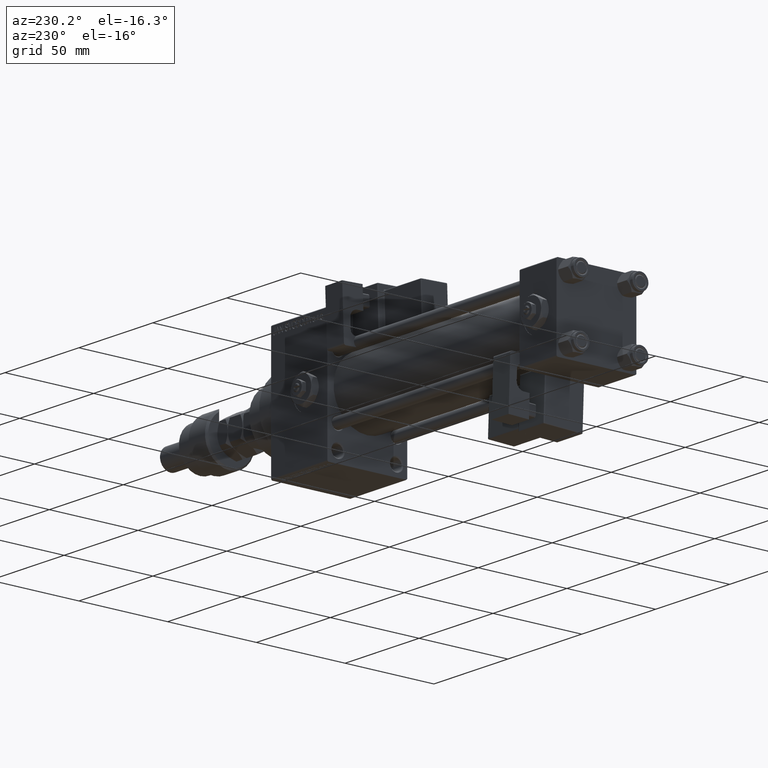
[diagram: clean part render]
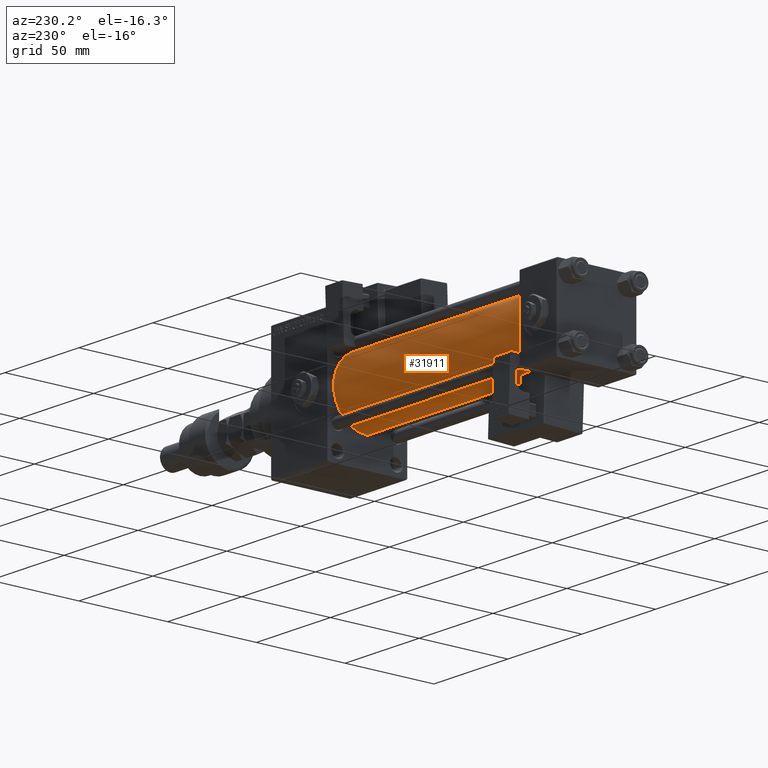
[diagram: same view with one face highlighted and labeled with its STEP entity id]
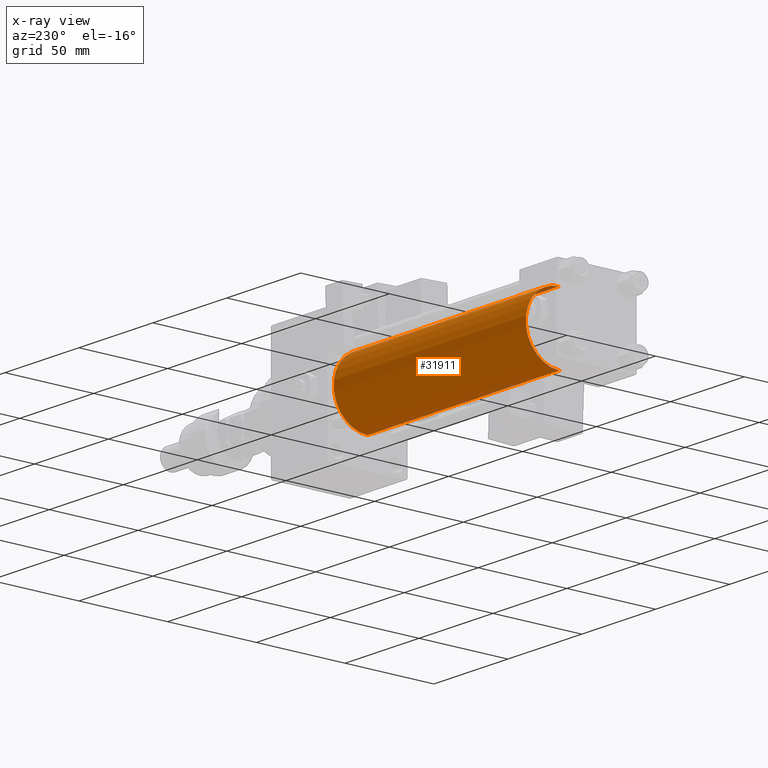
[diagram: x-ray of the same camera — body ghosted, the highlighted face saturated]
A machine part, auxiliary view. The second image highlights one B-rep face of the part: STEP entity #31911.
The next image is the same camera in x-ray: the body ghosted, the highlighted face saturated — about 0% of this face is hidden behind the body in this view.
In plain terms, the highlighted cylindrical surface (partial cylindrical patch) has radius 19 mm, axis along (-1, -0, -0).
Its self-contained STEP definition (entity closure, byte-faithful):
#69 = DIRECTION ( 'NONE',  ( -1.000000000000000000, -0.000000000000000000, -0.000000000000000000 ) ) ;
#98 = AXIS2_PLACEMENT_3D ( 'NONE', #17713, #5116, #4841 ) ;
#537 = VECTOR ( 'NONE', #40776, 1000.000000000000000 ) ;
#2927 = DIRECTION ( 'NONE',  ( 1.000000000000000000, 0.000000000000000000, 0.000000000000000000 ) ) ;
#3083 = CARTESIAN_POINT ( 'NONE',  ( 155.0000000000000000, -2.602085213965210642E-15, 19.00000000000000000 ) ) ;
#3222 = EDGE_CURVE ( 'NONE', #40697, #32196, #42993, .T. ) ;
#4841 = DIRECTION ( 'NONE',  ( 0.000000000000000000, 0.000000000000000000, 1.000000000000000000 ) ) ;
#5116 = DIRECTION ( 'NONE',  ( 1.000000000000000000, -0.000000000000000000, 0.000000000000000000 ) ) ;
#6528 = CARTESIAN_POINT ( 'NONE',  ( 24.99999999999999289, -2.752562955852396712E-16, -19.00000000000000000 ) ) ;
#13861 = VERTEX_POINT ( 'NONE', #41466 ) ;
#14324 = EDGE_CURVE ( 'NONE', #35096, #13861, #40879, .T. ) ;
#17713 = CARTESIAN_POINT ( 'NONE',  ( 24.99999999999999289, -2.602085213965210642E-15, 0.000000000000000000 ) ) ;
#19632 = DIRECTION ( 'NONE',  ( 0.000000000000000000, 0.000000000000000000, -1.000000000000000000 ) ) ;
#20453 = AXIS2_PLACEMENT_3D ( 'NONE', #24473, #69, #50231 ) ;
#20559 = CARTESIAN_POINT ( 'NONE',  ( 24.99999999999999289, -2.602085213965210642E-15, 19.00000000000000000 ) ) ;
#20901 = EDGE_LOOP ( 'NONE', ( #26166, #36832, #33322, #45188 ) ) ;
#24473 = CARTESIAN_POINT ( 'NONE',  ( 155.0000000000000000, -2.602085213965210642E-15, 0.000000000000000000 ) ) ;
#24540 = CARTESIAN_POINT ( 'NONE',  ( 155.0000000000000000, -2.602085213965210642E-15, 0.000000000000000000 ) ) ;
#26166 = ORIENTED_EDGE ( 'NONE', *, *, #14324, .F. ) ;
#31911 = ADVANCED_FACE ( 'NONE', ( #33503 ), #42004, .T. ) ;
#32196 = VERTEX_POINT ( 'NONE', #20559 ) ;
#33322 = ORIENTED_EDGE ( 'NONE', *, *, #3222, .T. ) ;
#33503 = FACE_OUTER_BOUND ( 'NONE', #20901, .T. ) ;
#35057 = EDGE_CURVE ( 'NONE', #13861, #32196, #48859, .T. ) ;
#35096 = VERTEX_POINT ( 'NONE', #37049 ) ;
#36513 = DIRECTION ( 'NONE',  ( -1.000000000000000000, -0.000000000000000000, -0.000000000000000000 ) ) ;
#36832 = ORIENTED_EDGE ( 'NONE', *, *, #46659, .T. ) ;
#37049 = CARTESIAN_POINT ( 'NONE',  ( 155.0000000000000000, -2.752562955852396712E-16, -19.00000000000000000 ) ) ;
#38237 = AXIS2_PLACEMENT_3D ( 'NONE', #24540, #2927, #19632 ) ;
#40697 = VERTEX_POINT ( 'NONE', #6528 ) ;
#40776 = DIRECTION ( 'NONE',  ( -1.000000000000000000, -0.000000000000000000, -0.000000000000000000 ) ) ;
#40879 = CIRCLE ( 'NONE', #38237, 19.00000000000000000 ) ;
#41466 = CARTESIAN_POINT ( 'NONE',  ( 155.0000000000000000, -2.602085213965210642E-15, 19.00000000000000000 ) ) ;
#42004 = CYLINDRICAL_SURFACE ( 'NONE', #20453, 19.00000000000000000 ) ;
#42993 = CIRCLE ( 'NONE', #98, 19.00000000000000000 ) ;
#45188 = ORIENTED_EDGE ( 'NONE', *, *, #35057, .F. ) ;
#46659 = EDGE_CURVE ( 'NONE', #35096, #40697, #49525, .T. ) ;
#48859 = LINE ( 'NONE', #3083, #50910 ) ;
#49525 = LINE ( 'NONE', #49791, #537 ) ;
#49791 = CARTESIAN_POINT ( 'NONE',  ( 155.0000000000000000, -2.752562955852396712E-16, -19.00000000000000000 ) ) ;
#50231 = DIRECTION ( 'NONE',  ( 0.000000000000000000, 0.000000000000000000, 1.000000000000000000 ) ) ;
#50910 = VECTOR ( 'NONE', #36513, 1000.000000000000000 ) ;